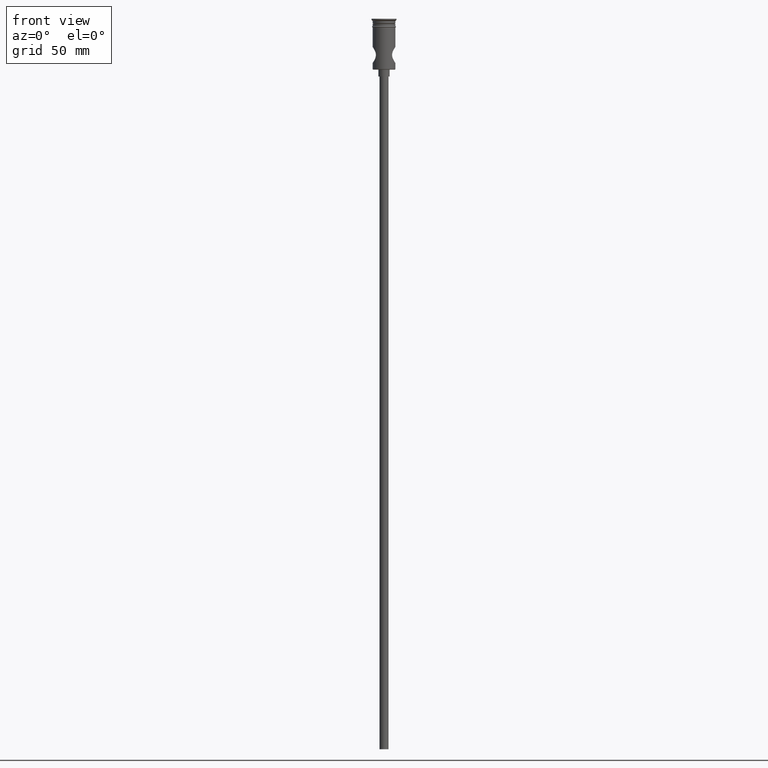
[diagram: clean part render]
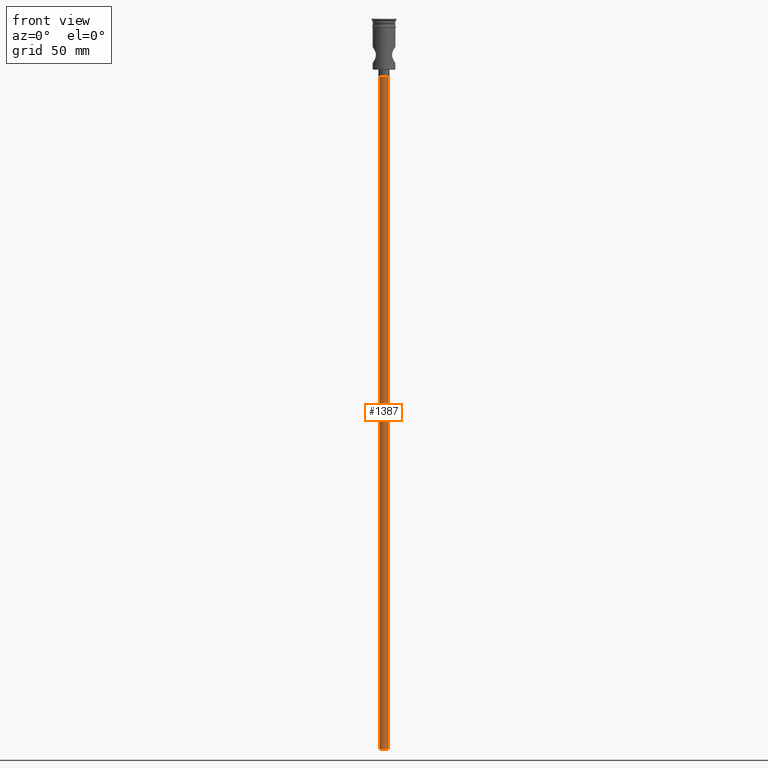
[diagram: same view with one face highlighted and labeled with its STEP entity id]
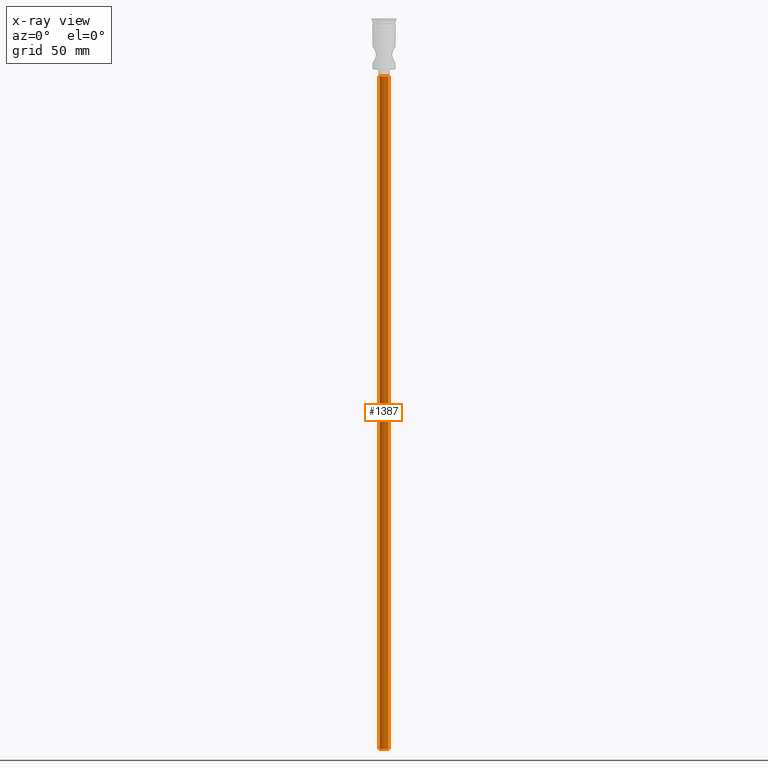
[diagram: x-ray of the same camera — body ghosted, the highlighted face saturated]
A machine part, front view. The second image highlights one B-rep face of the part: STEP entity #1387.
The next image is the same camera in x-ray: the body ghosted, the highlighted face saturated — about 0% of this face is hidden behind the body in this view.
In plain terms, the highlighted cylindrical surface (edge-blend (fillet) strip) has radius 2 mm, axis along (-0, -0, 1).
Its self-contained STEP definition (entity closure, byte-faithful):
#19 = VERTEX_POINT ( 'NONE', #448 ) ;
#22 = DIRECTION ( 'NONE',  ( -0.000000000000000000, -0.000000000000000000, 1.000000000000000000 ) ) ;
#133 = FACE_OUTER_BOUND ( 'NONE', #1258, .T. ) ;
#177 = VECTOR ( 'NONE', #566, 1000.000000000000000 ) ;
#262 = CARTESIAN_POINT ( 'NONE',  ( -2.000000000000000000, 2.449293598294706414E-16, -25.50000000000000000 ) ) ;
#264 = DIRECTION ( 'NONE',  ( -1.000000000000000000, 0.000000000000000000, 0.000000000000000000 ) ) ;
#293 = CIRCLE ( 'NONE', #1178, 2.000000000000000000 ) ;
#300 = EDGE_CURVE ( 'NONE', #862, #19, #995, .T. ) ;
#324 = VERTEX_POINT ( 'NONE', #705 ) ;
#432 = EDGE_CURVE ( 'NONE', #862, #324, #1356, .T. ) ;
#445 = CARTESIAN_POINT ( 'NONE',  ( -2.000000000000000000, 2.449293598294706414E-16, -322.5000000000000000 ) ) ;
#448 = CARTESIAN_POINT ( 'NONE',  ( 2.000000000000000000, 0.000000000000000000, -25.50000000000000000 ) ) ;
#484 = CYLINDRICAL_SURFACE ( 'NONE', #940, 2.000000000000000000 ) ;
#566 = DIRECTION ( 'NONE',  ( -0.000000000000000000, -0.000000000000000000, 1.000000000000000000 ) ) ;
#589 = VECTOR ( 'NONE', #1226, 1000.000000000000000 ) ;
#668 = AXIS2_PLACEMENT_3D ( 'NONE', #1268, #739, #264 ) ;
#705 = CARTESIAN_POINT ( 'NONE',  ( -2.000000000000000000, 2.449293598294706414E-16, -322.5000000000000000 ) ) ;
#739 = DIRECTION ( 'NONE',  ( 0.000000000000000000, 0.000000000000000000, -1.000000000000000000 ) ) ;
#780 = CARTESIAN_POINT ( 'NONE',  ( 2.000000000000000000, 0.000000000000000000, -322.5000000000000000 ) ) ;
#789 = EDGE_CURVE ( 'NONE', #324, #948, #887, .T. ) ;
#795 = CARTESIAN_POINT ( 'NONE',  ( 0.000000000000000000, 0.000000000000000000, -25.50000000000000000 ) ) ;
#830 = CARTESIAN_POINT ( 'NONE',  ( 0.000000000000000000, 0.000000000000000000, -322.5000000000000000 ) ) ;
#840 = ORIENTED_EDGE ( 'NONE', *, *, #300, .T. ) ;
#862 = VERTEX_POINT ( 'NONE', #1046 ) ;
#887 = LINE ( 'NONE', #445, #177 ) ;
#940 = AXIS2_PLACEMENT_3D ( 'NONE', #830, #22, #1057 ) ;
#948 = VERTEX_POINT ( 'NONE', #262 ) ;
#995 = LINE ( 'NONE', #780, #589 ) ;
#1004 = DIRECTION ( 'NONE',  ( 0.000000000000000000, 0.000000000000000000, -1.000000000000000000 ) ) ;
#1045 = ORIENTED_EDGE ( 'NONE', *, *, #1312, .T. ) ;
#1046 = CARTESIAN_POINT ( 'NONE',  ( 2.000000000000000000, 0.000000000000000000, -322.5000000000000000 ) ) ;
#1054 = ORIENTED_EDGE ( 'NONE', *, *, #432, .F. ) ;
#1057 = DIRECTION ( 'NONE',  ( 1.000000000000000000, 0.000000000000000000, 0.000000000000000000 ) ) ;
#1114 = ORIENTED_EDGE ( 'NONE', *, *, #789, .F. ) ;
#1178 = AXIS2_PLACEMENT_3D ( 'NONE', #795, #1004, #1218 ) ;
#1218 = DIRECTION ( 'NONE',  ( -1.000000000000000000, 0.000000000000000000, 0.000000000000000000 ) ) ;
#1226 = DIRECTION ( 'NONE',  ( -0.000000000000000000, -0.000000000000000000, 1.000000000000000000 ) ) ;
#1258 = EDGE_LOOP ( 'NONE', ( #1114, #1054, #840, #1045 ) ) ;
#1268 = CARTESIAN_POINT ( 'NONE',  ( 0.000000000000000000, 0.000000000000000000, -322.5000000000000000 ) ) ;
#1312 = EDGE_CURVE ( 'NONE', #19, #948, #293, .T. ) ;
#1356 = CIRCLE ( 'NONE', #668, 2.000000000000000000 ) ;
#1387 = ADVANCED_FACE ( 'NONE', ( #133 ), #484, .T. ) ;